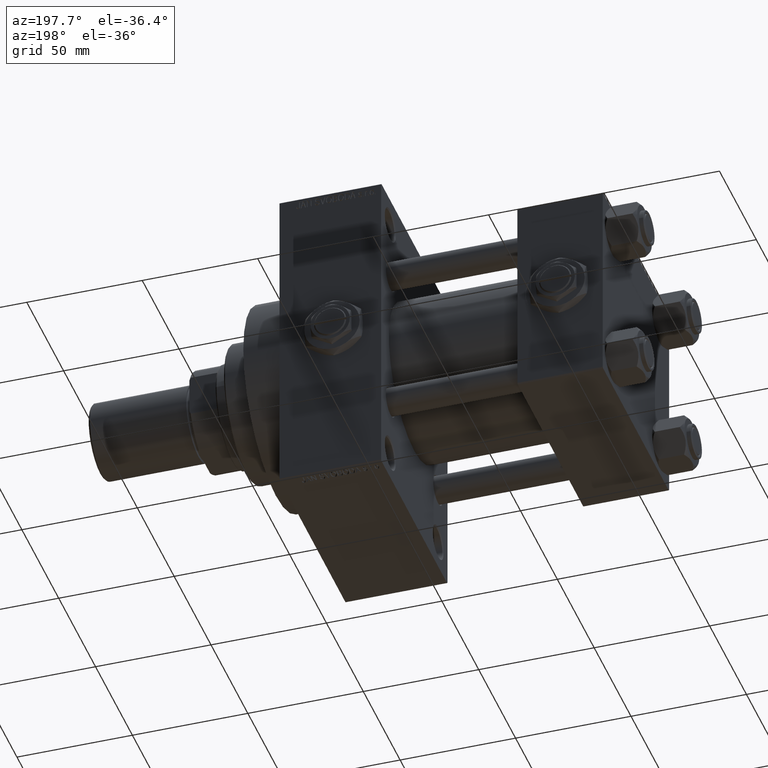
[diagram: clean part render]
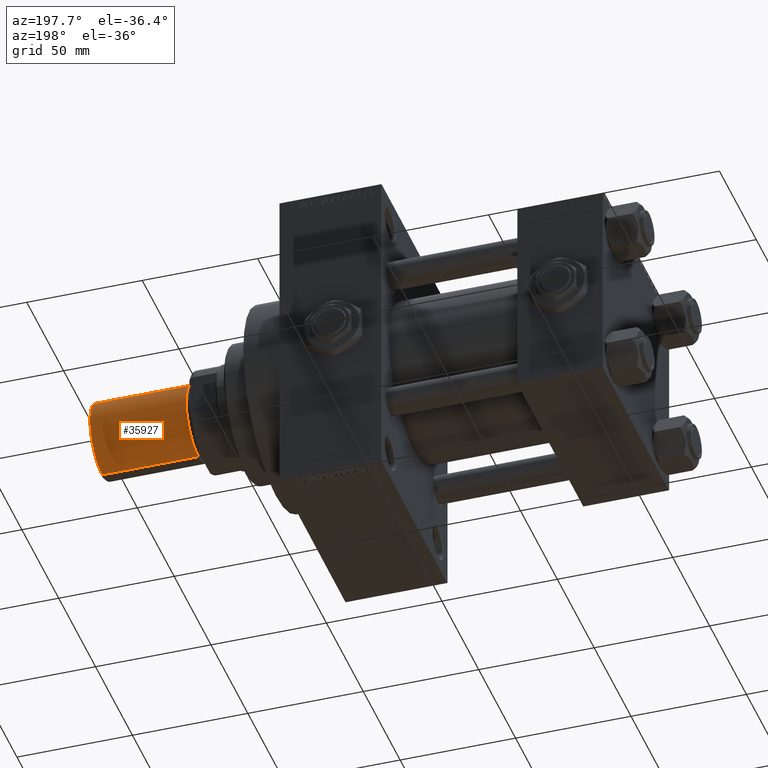
[diagram: same view with one face highlighted and labeled with its STEP entity id]
A machine part, auxiliary view. The second image highlights one B-rep face of the part: STEP entity #35927.
In plain terms, the highlighted cylindrical surface (partial cylindrical patch) has radius 16.5 mm, axis along (1, -0, -0).
Its self-contained STEP definition (entity closure, byte-faithful):
#1184 = ORIENTED_EDGE ( 'NONE', *, *, #44541, .T. ) ;
#1662 = LINE ( 'NONE', #24805, #14138 ) ;
#3727 = VERTEX_POINT ( 'NONE', #33402 ) ;
#4805 = ORIENTED_EDGE ( 'NONE', *, *, #19335, .F. ) ;
#5626 = DIRECTION ( 'NONE',  ( -0.000000000000000000, -0.000000000000000000, -1.000000000000000000 ) ) ;
#9729 = DIRECTION ( 'NONE',  ( -0.000000000000000000, -0.000000000000000000, -1.000000000000000000 ) ) ;
#9902 = EDGE_CURVE ( 'NONE', #21064, #31172, #1662, .T. ) ;
#13436 = EDGE_CURVE ( 'NONE', #35822, #3727, #27805, .T. ) ;
#13654 = DIRECTION ( 'NONE',  ( -1.000000000000000000, 0.000000000000000000, 0.000000000000000000 ) ) ;
#14138 = VECTOR ( 'NONE', #9729, 1000.000000000000000 ) ;
#19335 = EDGE_CURVE ( 'NONE', #35822, #21064, #31586, .T. ) ;
#20206 = CARTESIAN_POINT ( 'NONE',  ( 16.50000000000000000, 2.020667218593133100E-15, 42.50000000000000000 ) ) ;
#21064 = VERTEX_POINT ( 'NONE', #41764 ) ;
#21685 = AXIS2_PLACEMENT_3D ( 'NONE', #47826, #5626, #13654 ) ;
#24151 = ORIENTED_EDGE ( 'NONE', *, *, #9902, .F. ) ;
#24805 = CARTESIAN_POINT ( 'NONE',  ( -16.50000000000000000, 0.000000000000000000, 42.50000000000000000 ) ) ;
#25285 = CARTESIAN_POINT ( 'NONE',  ( 0.000000000000000000, 0.000000000000000000, 42.50000000000000000 ) ) ;
#27308 = DIRECTION ( 'NONE',  ( -0.000000000000000000, -0.000000000000000000, -1.000000000000000000 ) ) ;
#27805 = LINE ( 'NONE', #42870, #28729 ) ;
#28729 = VECTOR ( 'NONE', #27308, 1000.000000000000000 ) ;
#29946 = CIRCLE ( 'NONE', #32344, 16.50000000000000000 ) ;
#31172 = VERTEX_POINT ( 'NONE', #40432 ) ;
#31586 = CIRCLE ( 'NONE', #46063, 16.50000000000000000 ) ;
#31866 = ORIENTED_EDGE ( 'NONE', *, *, #13436, .T. ) ;
#32344 = AXIS2_PLACEMENT_3D ( 'NONE', #34044, #42338, #49400 ) ;
#33402 = CARTESIAN_POINT ( 'NONE',  ( 16.50000000000000000, 2.020667218593133100E-15, 0.8000000000000020428 ) ) ;
#34044 = CARTESIAN_POINT ( 'NONE',  ( 0.000000000000000000, 0.000000000000000000, 0.8000000000000020428 ) ) ;
#35822 = VERTEX_POINT ( 'NONE', #20206 ) ;
#35927 = ADVANCED_FACE ( 'NONE', ( #44295 ), #48079, .T. ) ;
#36350 = DIRECTION ( 'NONE',  ( 1.000000000000000000, 0.000000000000000000, 0.000000000000000000 ) ) ;
#38699 = EDGE_LOOP ( 'NONE', ( #4805, #31866, #1184, #24151 ) ) ;
#40432 = CARTESIAN_POINT ( 'NONE',  ( -16.50000000000000000, 0.000000000000000000, 0.8000000000000020428 ) ) ;
#41764 = CARTESIAN_POINT ( 'NONE',  ( -16.50000000000000000, 0.000000000000000000, 42.50000000000000000 ) ) ;
#42338 = DIRECTION ( 'NONE',  ( -0.000000000000000000, -0.000000000000000000, 1.000000000000000000 ) ) ;
#42870 = CARTESIAN_POINT ( 'NONE',  ( 16.50000000000000000, 2.020667218593133100E-15, 42.50000000000000000 ) ) ;
#44295 = FACE_OUTER_BOUND ( 'NONE', #38699, .T. ) ;
#44541 = EDGE_CURVE ( 'NONE', #3727, #31172, #29946, .T. ) ;
#46063 = AXIS2_PLACEMENT_3D ( 'NONE', #25285, #47917, #36350 ) ;
#47826 = CARTESIAN_POINT ( 'NONE',  ( 0.000000000000000000, 0.000000000000000000, 42.50000000000000000 ) ) ;
#47917 = DIRECTION ( 'NONE',  ( 0.000000000000000000, 0.000000000000000000, 1.000000000000000000 ) ) ;
#48079 = CYLINDRICAL_SURFACE ( 'NONE', #21685, 16.50000000000000000 ) ;
#49400 = DIRECTION ( 'NONE',  ( 1.000000000000000000, 0.000000000000000000, 0.000000000000000000 ) ) ;